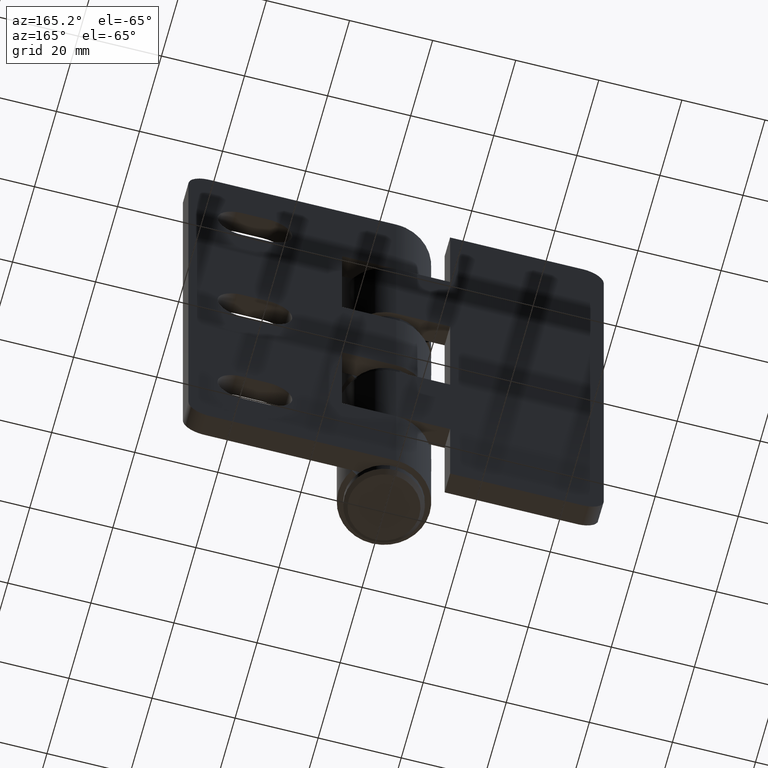
[diagram: clean part render]
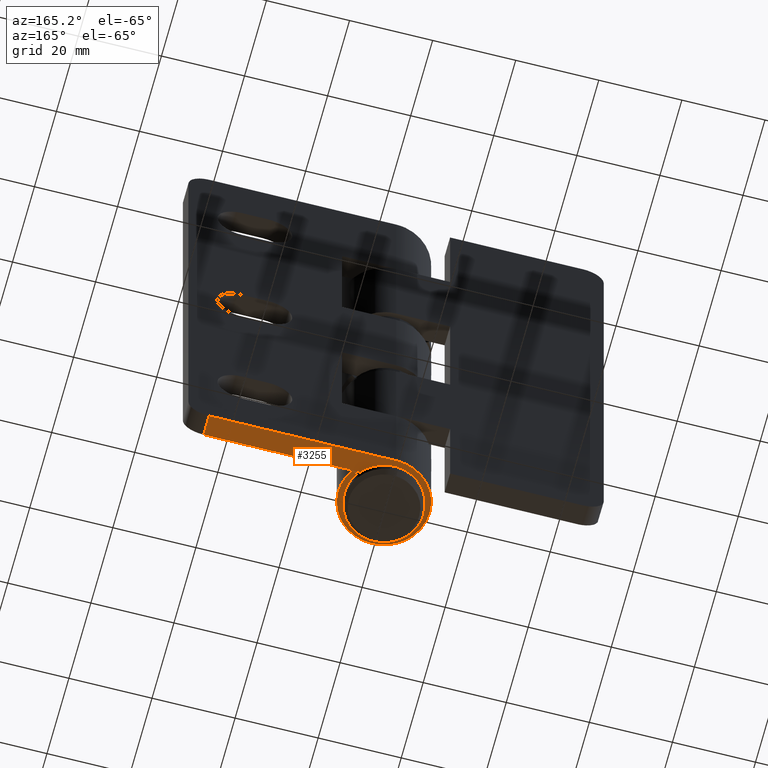
[diagram: same view with one face highlighted and labeled with its STEP entity id]
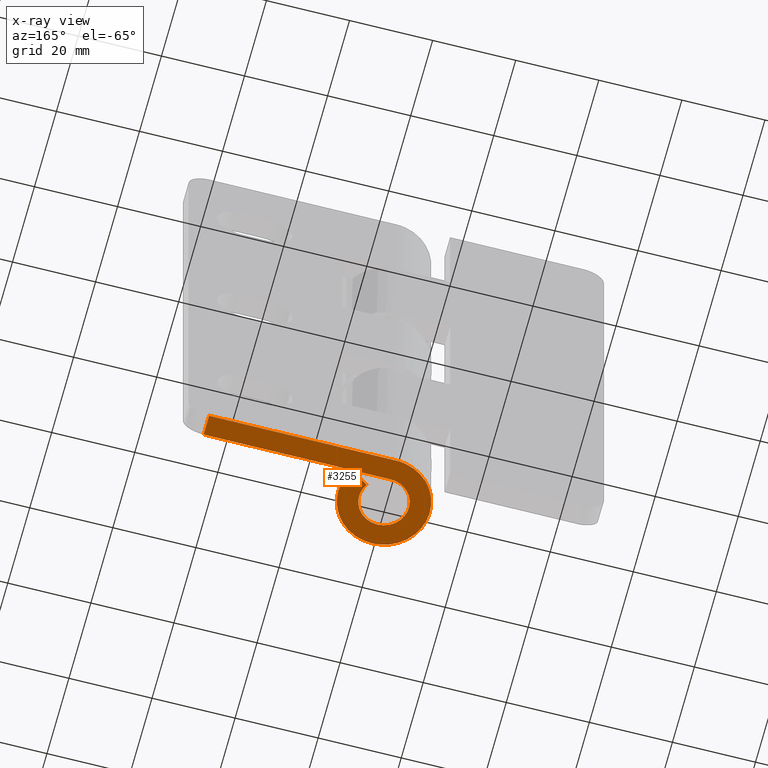
[diagram: x-ray of the same camera — body ghosted, the highlighted face saturated]
A machine part, auxiliary view. The second image highlights one B-rep face of the part: STEP entity #3255.
The next image is the same camera in x-ray: the body ghosted, the highlighted face saturated — about 0% of this face is hidden behind the body in this view.
In plain terms, the highlighted face is a freeform B-spline surface patch.
Its self-contained STEP definition (entity closure, byte-faithful):
#3080=CARTESIAN_POINT('',(45.0,11.0,0.0));
#3081=VERTEX_POINT('',#3080);
#3102=CARTESIAN_POINT('',(45.0,6.0,0.0));
#3103=VERTEX_POINT('',#3102);
#3117=CARTESIAN_POINT('',(45.0,11.0,0.0));
#3118=CARTESIAN_POINT('',(45.0,6.0,0.0));
#3119=QUASI_UNIFORM_CURVE('',1,(#3117,#3118),.UNSPECIFIED.,.F.,.U.);
#3120=EDGE_CURVE('',#3081,#3103,#3119,.T.);
#3186=CARTESIAN_POINT('',(-13.796007375946109,-12.094126757049850,0.0));
#3187=CARTESIAN_POINT('',(47.797144661101633,-12.094126757049850,0.0));
#3188=CARTESIAN_POINT('',(-13.796007375946109,12.098673468561310,0.0));
#3189=CARTESIAN_POINT('',(47.797144661101633,12.098673468561310,0.0));
#3190=B_SPLINE_SURFACE_WITH_KNOTS('',1,1,((#3186,#3188),(#3187,#3189)),.UNSPECIFIED.,.F.,.F.,.U.,(2,2),(2,2),(0.0,61.593152037047737),(0.0,24.192800225611158),.UNSPECIFIED.);
#3191=CARTESIAN_POINT('',(0.0,11.0,0.0));
#3192=VERTEX_POINT('',#3191);
#3193=CARTESIAN_POINT('',(0.0,11.0,0.0));
#3194=CARTESIAN_POINT('',(45.0,11.0,0.0));
#3195=QUASI_UNIFORM_CURVE('',1,(#3193,#3194),.UNSPECIFIED.,.F.,.U.);
#3196=EDGE_CURVE('',#3192,#3081,#3195,.T.);
#3197=ORIENTED_EDGE('',*,*,#3196,.T.);
#3198=ORIENTED_EDGE('',*,*,#3120,.T.);
#3199=CARTESIAN_POINT('',(-8.881784E-016,6.0,0.0));
#3200=VERTEX_POINT('',#3199);
#3201=CARTESIAN_POINT('',(45.0,6.0,0.0));
#3202=CARTESIAN_POINT('',(-8.881784E-016,6.0,0.0));
#3203=QUASI_UNIFORM_CURVE('',1,(#3201,#3202),.UNSPECIFIED.,.F.,.U.);
#3204=EDGE_CURVE('',#3103,#3200,#3203,.T.);
#3205=ORIENTED_EDGE('',*,*,#3204,.T.);
#3206=CARTESIAN_POINT('',(5.046486380977201,3.245454545454550,0.0));
#3207=VERTEX_POINT('',#3206);
#3208=CARTESIAN_POINT('',(5.046486380977204,3.245454545454551,0.0));
#3209=CARTESIAN_POINT('',(7.567839989825298,-0.675098483550370,0.0));
#3210=CARTESIAN_POINT('',(4.392344968131430,-4.087457116708444,0.0));
#3211=CARTESIAN_POINT('',(1.216849946437563,-7.499815749866515,0.0));
#3212=CARTESIAN_POINT('',(-2.874654129393018,-5.266532411023754,0.0));
#3213=CARTESIAN_POINT('',(-6.966158205223600,-3.033249072180993,0.0));
#3214=CARTESIAN_POINT('',(-5.813742102387350,1.483375463909499,0.0));
#3215=CARTESIAN_POINT('',(-4.661325999551098,6.000000000000001,0.0));
#3216=CARTESIAN_POINT('',(0.0,6.0,0.0));
#3224=(BOUNDED_CURVE()B_SPLINE_CURVE(2,(#3208,#3209,#3210,#3211,#3212,#3213,#3214,#3215,#3216),.UNSPECIFIED.,.F.,.U.)B_SPLINE_CURVE_WITH_KNOTS((3,2,2,2,3),(0.0,0.250000000000000,0.500000000000000,0.750000000000000,1.0),.UNSPECIFIED.)CURVE()GEOMETRIC_REPRESENTATION_ITEM()RATIONAL_B_SPLINE_CURVE((1.0,0.789692738976660,1.0,0.789692738976660,1.0,0.789692738976660,1.0,0.789692738976660,1.0))REPRESENTATION_ITEM(''));
#3225=EDGE_CURVE('',#3207,#3200,#3224,.T.);
#3226=ORIENTED_EDGE('',*,*,#3225,.F.);
#3227=CARTESIAN_POINT('',(9.251891698458209,5.950000000000000,0.0));
#3228=VERTEX_POINT('',#3227);
#3229=CARTESIAN_POINT('',(5.046486380977201,3.245454545454550,0.0));
#3230=CARTESIAN_POINT('',(9.251891698458209,5.950000000000000,0.0));
#3231=QUASI_UNIFORM_CURVE('',1,(#3229,#3230),.UNSPECIFIED.,.F.,.U.);
#3232=EDGE_CURVE('',#3207,#3228,#3231,.T.);
#3233=ORIENTED_EDGE('',*,*,#3232,.T.);
#3234=CARTESIAN_POINT('',(9.251891698458211,5.950000000000002,0.0));
#3235=CARTESIAN_POINT('',(13.874373314679708,-1.237680553175686,0.0));
#3236=CARTESIAN_POINT('',(8.052632441574287,-7.493671380632148,0.0));
#3237=CARTESIAN_POINT('',(2.230891568468870,-13.749662208088605,0.0));
#3238=CARTESIAN_POINT('',(-5.270199237220531,-9.655309420210214,0.0));
#3239=CARTESIAN_POINT('',(-12.771290042909945,-5.560956632331815,0.0));
#3240=CARTESIAN_POINT('',(-10.658527187710140,2.719521683834099,0.0));
#3241=CARTESIAN_POINT('',(-8.545764332510327,11.0,0.0));
#3242=CARTESIAN_POINT('',(0.0,11.0,0.0));
#3250=(BOUNDED_CURVE()B_SPLINE_CURVE(2,(#3234,#3235,#3236,#3237,#3238,#3239,#3240,#3241,#3242),.UNSPECIFIED.,.F.,.U.)B_SPLINE_CURVE_WITH_KNOTS((3,2,2,2,3),(0.0,0.250000000000000,0.500000000000000,0.750000000000000,1.0),.UNSPECIFIED.)CURVE()GEOMETRIC_REPRESENTATION_ITEM()RATIONAL_B_SPLINE_CURVE((1.0,0.789692738976660,1.0,0.789692738976660,1.0,0.789692738976660,1.0,0.789692738976660,1.0))REPRESENTATION_ITEM(''));
#3251=EDGE_CURVE('',#3228,#3192,#3250,.T.);
#3252=ORIENTED_EDGE('',*,*,#3251,.T.);
#3253=EDGE_LOOP('',(#3197,#3198,#3205,#3226,#3233,#3252));
#3254=FACE_OUTER_BOUND('',#3253,.T.);
#3255=ADVANCED_FACE('',(#3254),#3190,.F.);